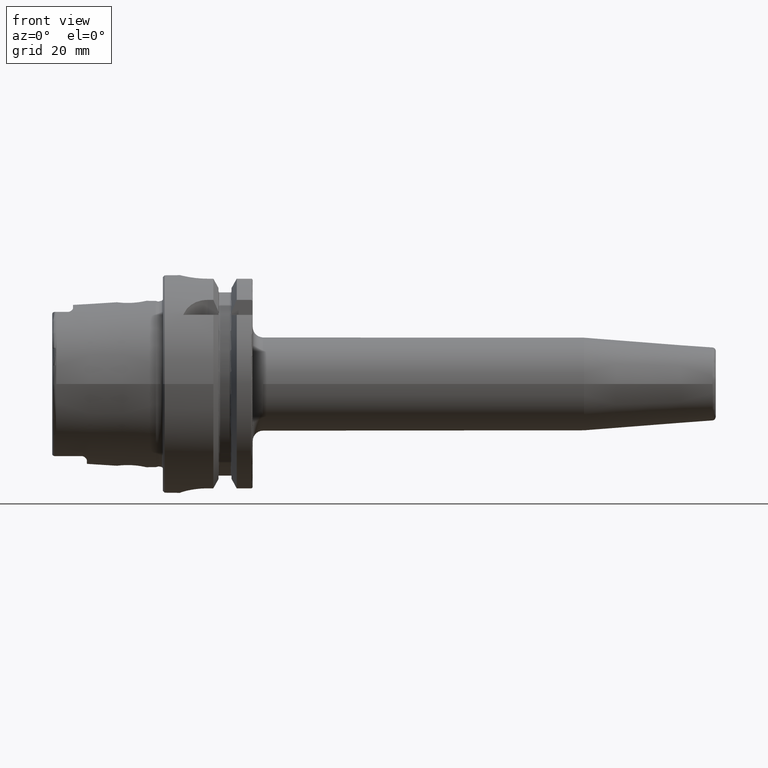
[diagram: clean part render]
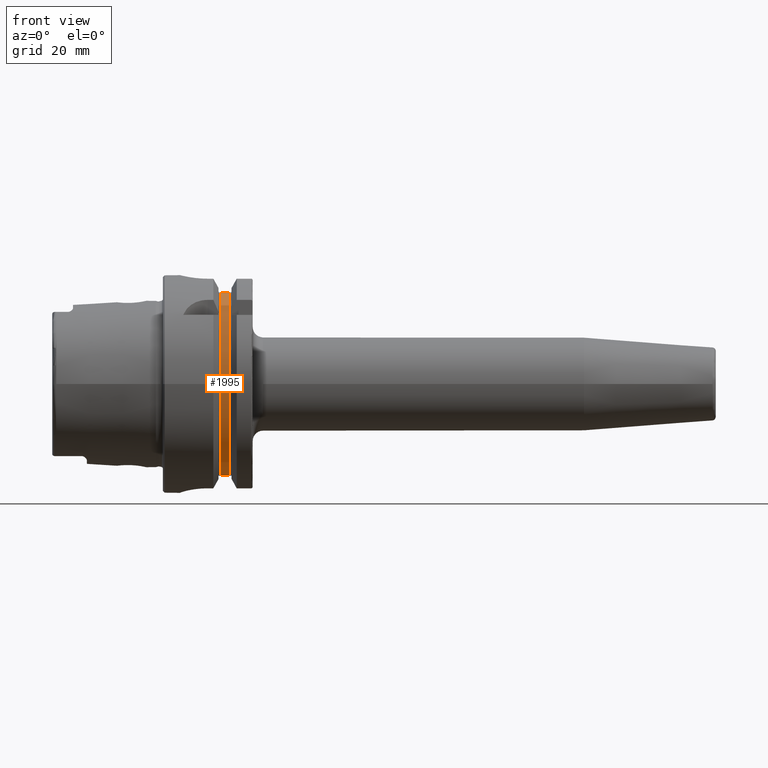
[diagram: same view with one face highlighted and labeled with its STEP entity id]
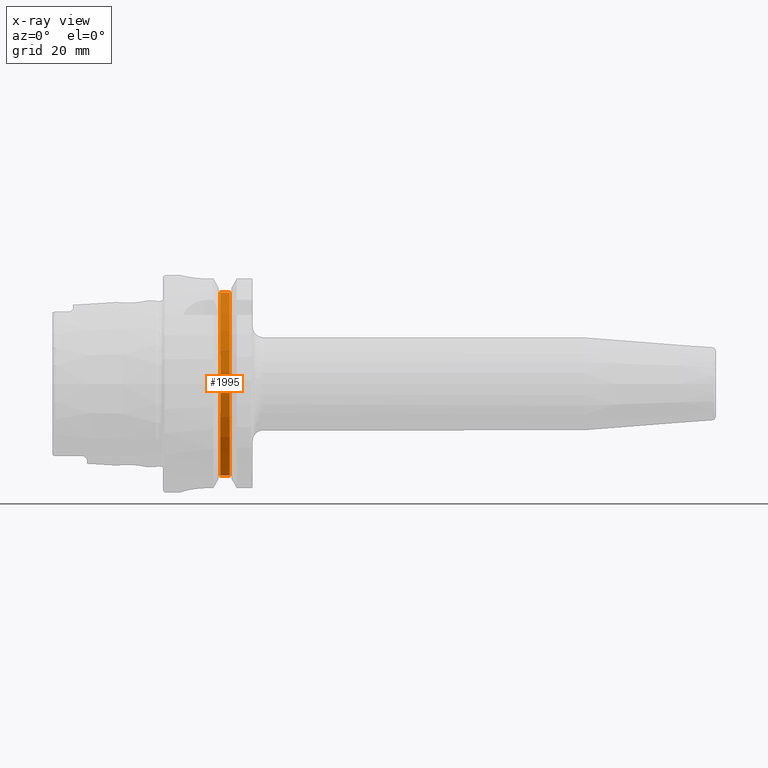
[diagram: x-ray of the same camera — body ghosted, the highlighted face saturated]
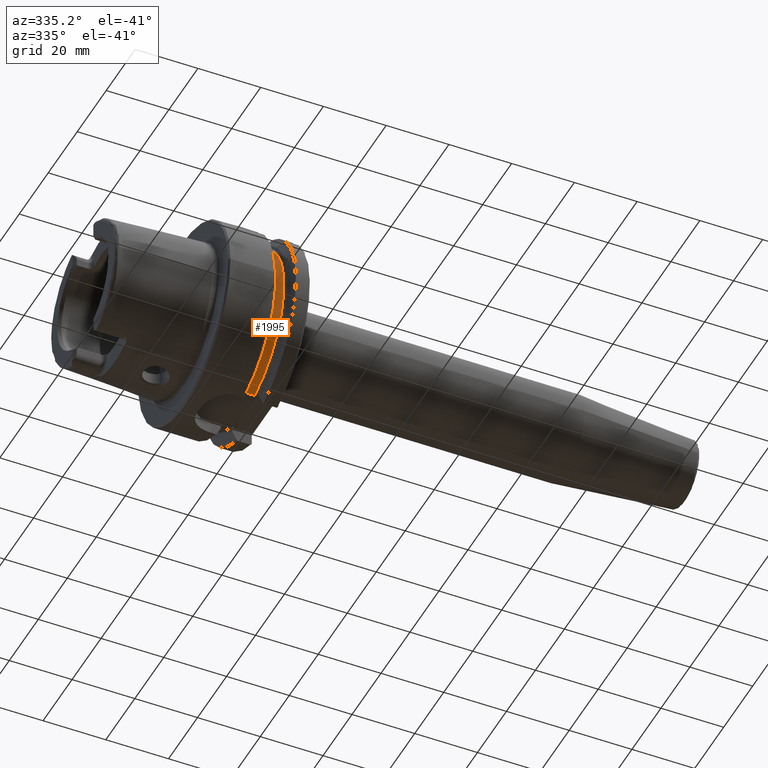
[diagram: same view with one face highlighted and labeled with its STEP entity id]
A machine part, front view. The second image highlights one B-rep face of the part: STEP entity #1995.
The next image is the same camera in x-ray: the body ghosted, the highlighted face saturated — about 0% of this face is hidden behind the body in this view.
A second angle (auxiliary view) of the same face is appended — the face is thin or edge-on in the first view.
In plain terms, the highlighted cylindrical surface (partial cylindrical patch) has radius 27.5 mm, axis along (1, 0, 0).
Its self-contained STEP definition (entity closure, byte-faithful):
#251=FACE_OUTER_BOUND('',#373,.T.);
#373=EDGE_LOOP('',(#1624,#1625,#1626,#1627));
#500=LINE('',#3976,#606);
#511=LINE('',#4108,#617);
#606=VECTOR('',#2622,10.);
#617=VECTOR('',#2687,10.);
#710=CIRCLE('',#2202,27.5);
#716=CIRCLE('',#2214,27.5);
#902=VERTEX_POINT('',#3921);
#910=VERTEX_POINT('',#3965);
#923=VERTEX_POINT('',#4061);
#928=VERTEX_POINT('',#4106);
#1157=EDGE_CURVE('',#902,#910,#500,.T.);
#1179=EDGE_CURVE('',#923,#902,#710,.T.);
#1190=EDGE_CURVE('',#928,#910,#716,.T.);
#1191=EDGE_CURVE('',#928,#923,#511,.T.);
#1624=ORIENTED_EDGE('',*,*,#1157,.T.);
#1625=ORIENTED_EDGE('',*,*,#1190,.F.);
#1626=ORIENTED_EDGE('',*,*,#1191,.T.);
#1627=ORIENTED_EDGE('',*,*,#1179,.T.);
#1918=CYLINDRICAL_SURFACE('',#2213,27.5);
#1995=ADVANCED_FACE('',(#251),#1918,.T.);
#2202=AXIS2_PLACEMENT_3D('',#4062,#2659,#2660);
#2213=AXIS2_PLACEMENT_3D('',#4105,#2683,#2684);
#2214=AXIS2_PLACEMENT_3D('',#4107,#2685,#2686);
#2622=DIRECTION('',(1.,0.,0.));
#2659=DIRECTION('center_axis',(1.,0.,0.));
#2660=DIRECTION('ref_axis',(0.,0.,-1.));
#2683=DIRECTION('center_axis',(1.,0.,0.));
#2684=DIRECTION('ref_axis',(0.,-1.,-1.22464679914735E-16));
#2685=DIRECTION('center_axis',(1.,0.,0.));
#2686=DIRECTION('ref_axis',(0.,0.,-1.));
#2687=DIRECTION('',(-1.,0.,0.));
#3921=CARTESIAN_POINT('',(16.625,-7.34846922834952,-26.5));
#3965=CARTESIAN_POINT('',(19.375,-7.34846922834952,-26.5));
#3976=CARTESIAN_POINT('',(18.,-7.34846922834952,-26.5));
#4061=CARTESIAN_POINT('',(16.625,-7.34846922834952,26.5));
#4062=CARTESIAN_POINT('Origin',(16.625,0.,0.));
#4105=CARTESIAN_POINT('Origin',(18.,0.,0.));
#4106=CARTESIAN_POINT('',(19.375,-7.34846922834952,26.5));
#4107=CARTESIAN_POINT('Origin',(19.375,0.,0.));
#4108=CARTESIAN_POINT('',(18.,-7.34846922834952,26.5));